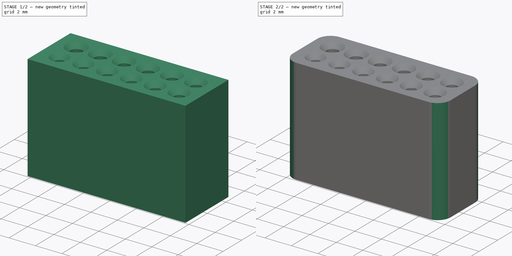
[diagram: build sequence overview — one tinted view per stage of 2, left to right]
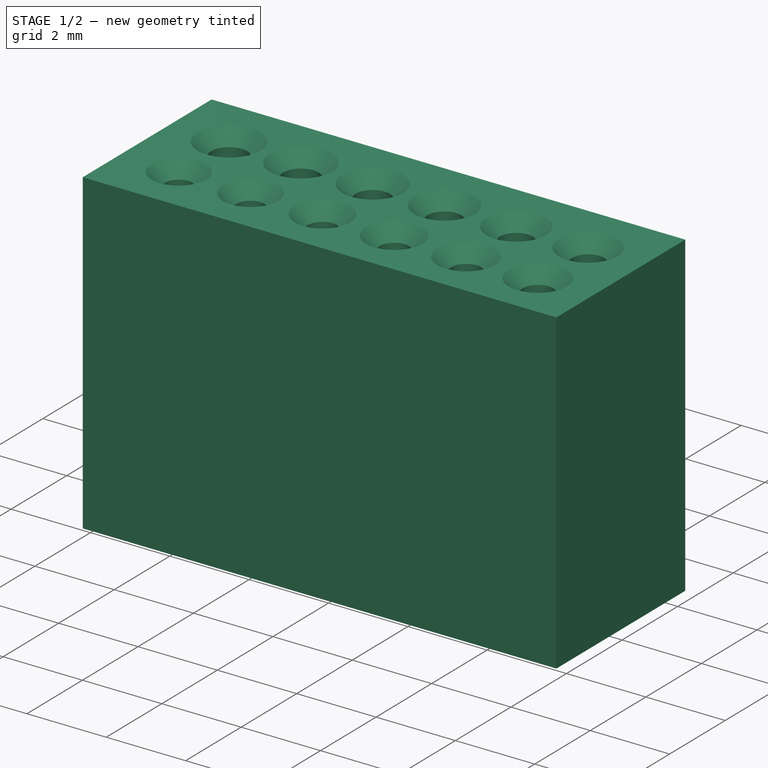
[diagram: stage 1 of 2 — iso view after this stage's code; geometry added in this stage tinted green]
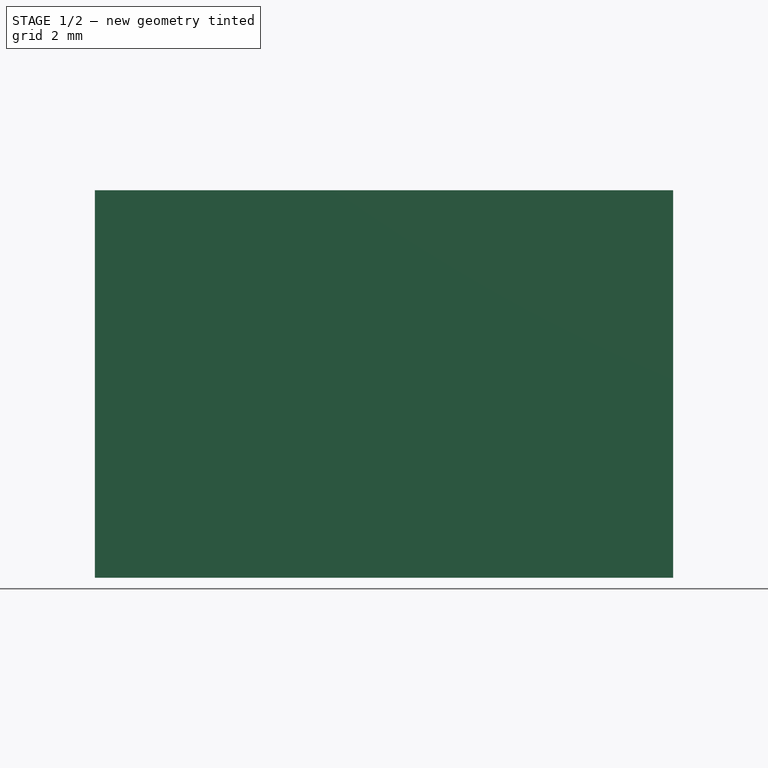
[diagram: stage 1 of 2 — front view after this stage's code; geometry added in this stage tinted green]
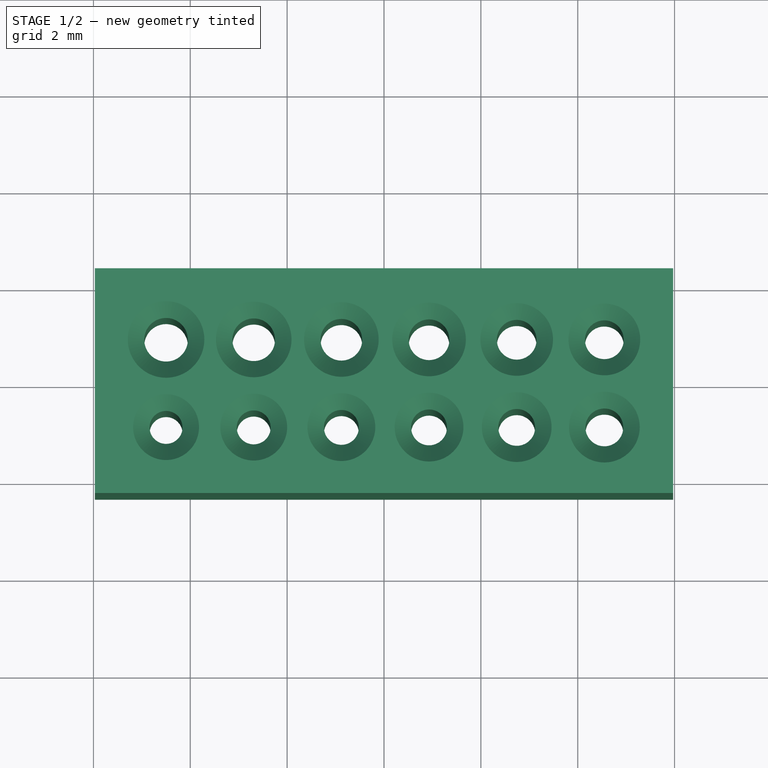
[diagram: stage 1 of 2 — top view after this stage's code; geometry added in this stage tinted green]
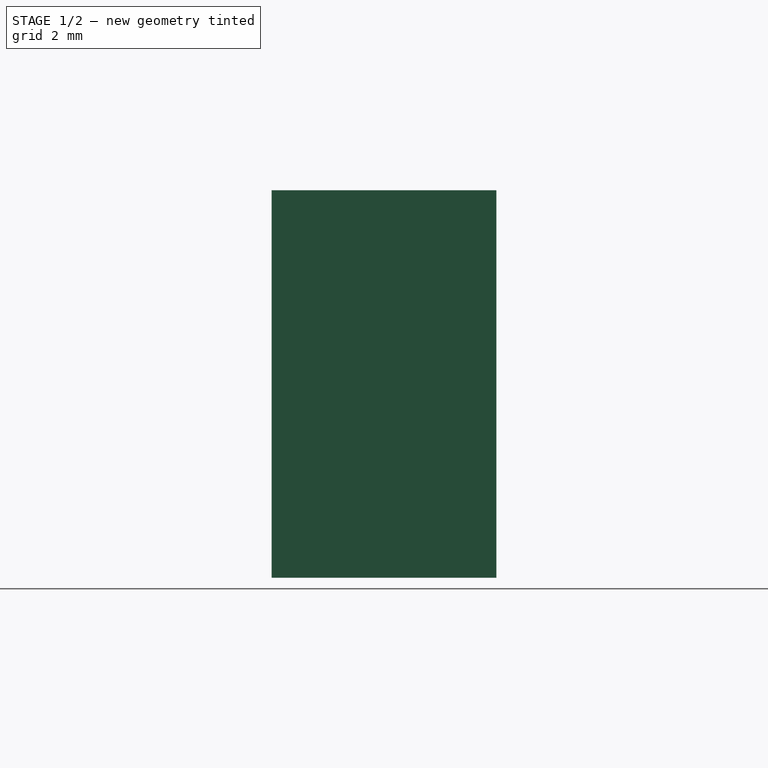
[diagram: stage 1 of 2 — right view after this stage's code; geometry added in this stage tinted green]
FCSTD DOCUMENT  (FreeCAD 0.21R33771 (Git))
Label: PogoPinTest
License: All rights reserved
LicenseURL: http://en.wikipedia.org/wiki/All_rights_reserved
objects: Sketcher::SketchObject×2, PartDesign::Body×2, PartDesign::Pad×1, PartDesign::Chamfer×1, PartDesign::Fillet×1, Spreadsheet::Sheet×1
note: 10 computed .brp shape members not serialized (recipe doc carries the construction recipe); baked Part::Feature solids carry a one-line shape summary decoded from their .brp

FEATURE [Sketcher::SketchObject] Sketch
  FullyConstrained = true
  MapMode = 5
  Support = -> [XY_Plane]
  expr: .Constraints.R = <<Spreadsheet>>.base
  expr: Constraints[54] = <<Spreadsheet>>.base + <<Spreadsheet>>.inc * 11
  expr: Constraints[60] = <<Spreadsheet>>.base + <<Spreadsheet>>.inc * 1
  expr: Constraints[61] = <<Spreadsheet>>.base + <<Spreadsheet>>.inc * 10
  expr: Constraints[62] = <<Spreadsheet>>.base + <<Spreadsheet>>.inc * 2
  expr: Constraints[63] = <<Spreadsheet>>.base + <<Spreadsheet>>.inc * 9
  expr: Constraints[64] = <<Spreadsheet>>.base + <<Spreadsheet>>.inc * 3
  expr: Constraints[65] = <<Spreadsheet>>.base + <<Spreadsheet>>.inc * 8
  expr: Constraints[66] = <<Spreadsheet>>.base + <<Spreadsheet>>.inc * 4
  expr: Constraints[67] = <<Spreadsheet>>.base + <<Spreadsheet>>.inc * 7
  expr: Constraints[68] = <<Spreadsheet>>.base + <<Spreadsheet>>.inc * 5
  expr: Constraints[69] = <<Spreadsheet>>.base + <<Spreadsheet>>.inc * 6
  expr: Constraints[97] = .Constraints.R * 3
  sketch-geometry (40):
    g0: Circle CenterX=-4.5 CenterY=-0.96 CenterZ=0 NormalX=0 NormalY=0 NormalZ=1 AngleXU=0 Radius=0.34
    g1: Circle CenterX=-4.5 CenterY=0.85 CenterZ=0 NormalX=0 NormalY=0 NormalZ=1 AngleXU=0 Radius=0.45
    g2: LineSegment StartX=-5.97 StartY=2.32 StartZ=0 EndX=5.97 EndY=2.32 EndZ=0
    g3: LineSegment StartX=5.97 StartY=2.32 StartZ=0 EndX=5.97 EndY=-2.32 EndZ=0
    g4: LineSegment StartX=5.97 StartY=-2.32 StartZ=0 EndX=-5.97 EndY=-2.32 EndZ=0
    g5: LineSegment StartX=-5.97 StartY=-2.32 StartZ=0 EndX=-5.97 EndY=2.32 EndZ=0
    g6: LineSegment StartX=-4.5 StartY=0.85 StartZ=0 EndX=-2.69 EndY=0.85 EndZ=0
    g7: LineSegment StartX=-4.5 StartY=-0.96 StartZ=0 EndX=-2.69 EndY=-0.96 EndZ=0
    g8: LineSegment StartX=-2.69 StartY=0.85 StartZ=0 EndX=-0.88 EndY=0.85 EndZ=0
    g9: LineSegment StartX=-2.69 StartY=-0.96 StartZ=0 EndX=-0.88 EndY=-0.96 EndZ=0
    g10: LineSegment StartX=-0.88 StartY=-0.96 StartZ=0 EndX=0.93 EndY=-0.96 EndZ=0
    g11: LineSegment StartX=-0.88 StartY=0.85 StartZ=0 EndX=0.93 EndY=0.85 EndZ=0
    g12: LineSegment StartX=0.93 StartY=0.85 StartZ=0 EndX=2.74 EndY=0.85 EndZ=0
    g13: LineSegment StartX=0.93 StartY=-0.96 StartZ=0 EndX=2.74 EndY=-0.96 EndZ=0
    g14: LineSegment StartX=2.74 StartY=0.85 StartZ=0 EndX=4.55 EndY=0.85 EndZ=0
    g15: LineSegment StartX=2.74 StartY=-0.96 StartZ=0 EndX=4.55 EndY=-0.96 EndZ=0
    g16: LineSegment StartX=4.55 StartY=-0.96 StartZ=0 EndX=5.97 EndY=-0.96 EndZ=0
    g17: Circle CenterX=-2.69 CenterY=0.85 CenterZ=0 NormalX=0 NormalY=0 NormalZ=1 AngleXU=0 Radius=0.44
    g18: Circle CenterX=-0.88 CenterY=0.85 CenterZ=0 NormalX=0 NormalY=0 NormalZ=1 AngleXU=0 Radius=0.43
    g19: Circle CenterX=0.93 CenterY=0.85 CenterZ=0 NormalX=0 NormalY=0 NormalZ=1 AngleXU=0 Radius=0.42
    g20: Circle CenterX=2.74 CenterY=0.85 CenterZ=0 NormalX=0 NormalY=0 NormalZ=1 AngleXU=0 Radius=0.41
    g21: Circle CenterX=4.55 CenterY=0.85 CenterZ=0 NormalX=0 NormalY=0 NormalZ=1 AngleXU=0 Radius=0.4
    g22: Circle CenterX=-2.69 CenterY=-0.96 CenterZ=0 NormalX=0 NormalY=0 NormalZ=1 AngleXU=0 Radius=0.35
    g23: Circle CenterX=-0.88 CenterY=-0.96 CenterZ=0 NormalX=0 NormalY=0 NormalZ=1 AngleXU=0 Radius=0.36
    g24: Circle CenterX=0.93 CenterY=-0.96 CenterZ=0 NormalX=0 NormalY=0 NormalZ=1 AngleXU=0 Radius=0.37
    g25: Circle CenterX=2.74 CenterY=-0.96 CenterZ=0 NormalX=0 NormalY=0 NormalZ=1 AngleXU=0 Radius=0.38
    g26: Circle CenterX=4.55 CenterY=-0.96 CenterZ=0 NormalX=0 NormalY=0 NormalZ=1 AngleXU=0 Radius=0.39
    g27: LineSegment StartX=-4.5 StartY=-0.96 StartZ=0 EndX=-5.97 EndY=-0.96 EndZ=0
    g28: LineSegment StartX=-4.5 StartY=0.85 StartZ=0 EndX=-4.5 EndY=1.3 EndZ=0
    g29: LineSegment StartX=-4.5 StartY=1.3 StartZ=0 EndX=-4.5 EndY=2.32 EndZ=0
    g30: LineSegment StartX=-4.5 StartY=0.85 StartZ=0 EndX=-4.5 EndY=0.4 EndZ=0
    g31: LineSegment StartX=-4.5 StartY=0.4 StartZ=0 EndX=-4.5 EndY=-0.62 EndZ=0
    g32: LineSegment StartX=-4.5 StartY=-0.62 StartZ=0 EndX=-4.5 EndY=-0.96 EndZ=0
    g33: LineSegment StartX=-4.5 StartY=-0.96 StartZ=0 EndX=-4.5 EndY=-1.3 EndZ=0
    g34: LineSegment StartX=-4.5 StartY=-1.3 StartZ=0 EndX=-4.5 EndY=-2.32 EndZ=0
    g35: LineSegment StartX=-2.69 StartY=0.85 StartZ=0 EndX=-2.69 EndY=-0.96 EndZ=0
    g36: LineSegment StartX=-4.5 StartY=0.85 StartZ=0 EndX=-4.95 EndY=0.85 EndZ=0
    g37: LineSegment StartX=-4.95 StartY=0.85 StartZ=0 EndX=-5.97 EndY=0.85 EndZ=0
    g38: LineSegment StartX=4.55 StartY=0.85 StartZ=0 EndX=4.95 EndY=0.85 EndZ=0
    g39: LineSegment StartX=4.95 StartY=0.85 StartZ=0 EndX=5.97 EndY=0.85 EndZ=0
  constraints (109):
    c: Radius(g0) = 0.34  'R'
    c: Coincident(g30,g1)
    c: Coincident(g32,g0)
    c: Coincident(g28,g1)
    c: Coincident(g33,g0)
    c: Coincident(g2,g3)
    c: Coincident(g3,g4)
    c: Coincident(g4,g5)
    c: Coincident(g5,g2)
    c: Horizontal(g2)
    c: Horizontal(g4)
    c: Vertical(g3)
    c: Vertical(g5)
    c: Coincident(g36,g1)
    c: PointOnObject(g37,g5)
    c: Coincident(g6,g1)
    c: Horizontal(g6)
    c: Coincident(g7,g0)
    c: Horizontal(g7)
    c: PointOnObject(g29,g2)
    c: PointOnObject(g34,g4)
    c: Coincident(g8,g6)
    c: Horizontal(g8)
    c: Coincident(g9,g7)
    c: Horizontal(g9)
    c: Coincident(g10,g9)
    c: Horizontal(g10)
    c: Coincident(g11,g8)
    c: Horizontal(g11)
    c: Coincident(g12,g11)
    c: Horizontal(g12)
    c: Coincident(g13,g10)
    c: Horizontal(g13)
    c: Coincident(g14,g12)
    c: Horizontal(g14)
    c: Coincident(g15,g13)
    c: Horizontal(g15)
    c: Coincident(g38,g14)
    c: Coincident(g16,g15)
    c: Horizontal(g16)
    c: Equal(g6,g7)
    c: Equal(g7,g8)
    c: Equal(g8,g9)
    c: Equal(g9,g11)
    c: Equal(g11,g10)
    c: Equal(g10,g12)
    c: Equal(g12,g13)
    c: Equal(g13,g14)
    c: Equal(g14,g15)
    c: Coincident(g17,g6)
    c: Coincident(g18,g8)
    c: Coincident(g19,g11)
    c: Coincident(g20,g12)
    c: Coincident(g21,g14)
    c: Radius(g1) = 0.45
    c: Coincident(g22,g7)
    c: Coincident(g23,g9)
    c: Coincident(g24,g10)
    c: Coincident(g25,g13)
    c: Coincident(g26,g15)
    c: Radius(g22) = 0.35
    c: Radius(g17) = 0.44
    c: Radius(g23) = 0.36
    c: Radius(g18) = 0.43
    c: Radius(g24) = 0.37
    c: Radius(g19) = 0.42
    c: Radius(g25) = 0.38
    c: Radius(g20) = 0.41
    c: Radius(g26) = 0.39
    c: Radius(g21) = 0.4
    c: PointOnObject(g16,g3)
    c: PointOnObject(g39,g3)
    c: Coincident(g27,g0)
    c: PointOnObject(g27,g5)
    c: Horizontal(g27)
    c: Coincident(g28,g29)
    c: Vertical(g28)
    c: Vertical(g29)
    c: Coincident(g30,g31)
    c: Vertical(g30)
    c: Coincident(g31,g32)
    c: Vertical(g31)
    c: Vertical(g32)
    c: Coincident(g33,g34)
    c: Vertical(g33)
    c: Vertical(g34)
    c: Coincident(g35,g17)
    c: Coincident(g35,g22)
    c: PointOnObject(g28,g1)
    c: PointOnObject(g30,g1)
    c: PointOnObject(g31,g0)
    c: PointOnObject(g33,g0)
    c: Equal(g29,g31)
    c: Equal(g31,g34)
    c: DistanceY(g4,g2) = 4.64
    c: Symmetric(g4,g2,g-1)
    c: DistanceX(g2,g2) = 11.94
    c: DistanceY(g31,g31) = 1.02
    c: Coincident(g36,g37)
    c: Horizontal(g36)
    c: Horizontal(g37)
    c: PointOnObject(g36,g1)
    c: Equal(g37,g29)
    c: Coincident(g38,g39)
    c: Horizontal(g38)
    c: Horizontal(g39)
    c: PointOnObject(g38,g21)
    c: Equal(g39,g37)
    c: Equal(g35,g6)
FEATURE [PartDesign::Pad] Pad
  Direction = (0,0,1)
  Length = 8
  Length2 = 10
  Profile = -> Sketch
  ReferenceAxis = -> Sketch [N_Axis]
  Type = 0
FEATURE [PartDesign::Chamfer] Chamfer
  Angle = 45
  Base = -> Pad [Face16,Face5,Face6,Face15,Face7,Face14,Face8,Face13,Face9,Face12,Face10,Face11]
  BaseFeature = -> Pad
  ChamferType = 0
  FlipDirection = false
  Size = 0.34
  Size2 = 1
  SupportTransform = false
  UseAllEdges = false
  expr: Size = <<Sketch>>.Constraints.R
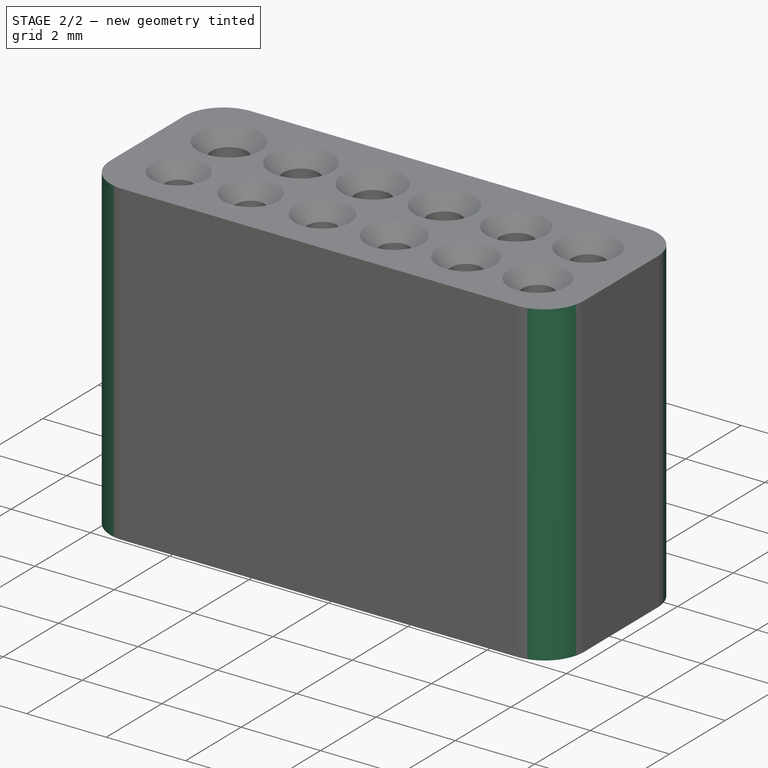
[diagram: stage 2 of 2 — iso view after this stage's code; geometry added in this stage tinted green]
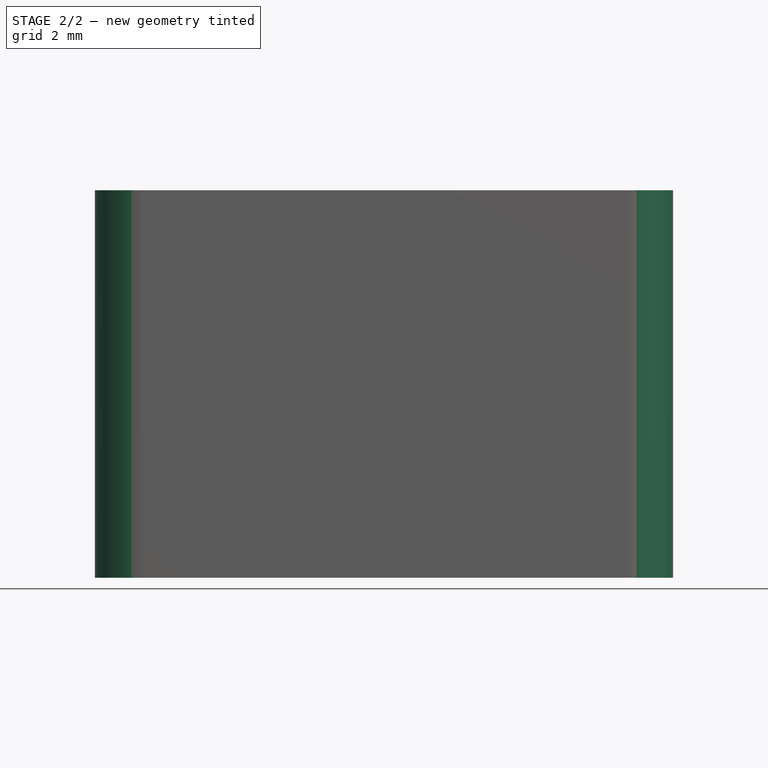
[diagram: stage 2 of 2 — front view after this stage's code; geometry added in this stage tinted green]
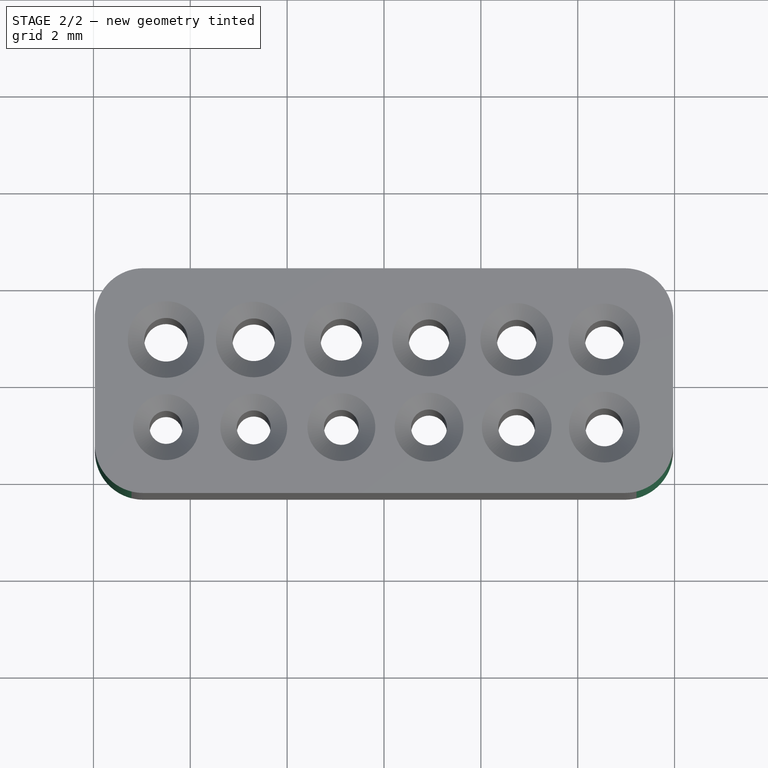
[diagram: stage 2 of 2 — top view after this stage's code; geometry added in this stage tinted green]
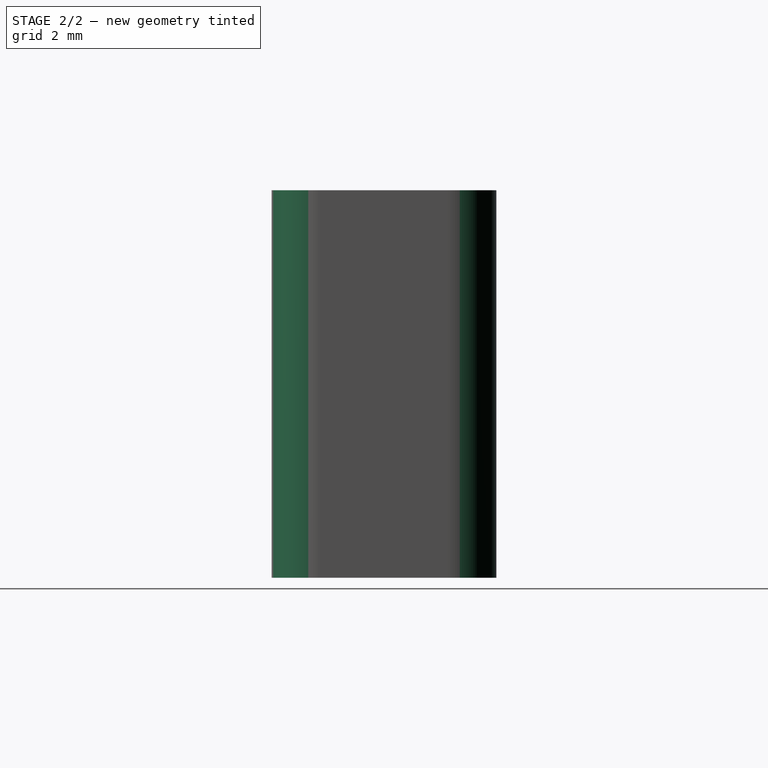
[diagram: stage 2 of 2 — right view after this stage's code; geometry added in this stage tinted green]
FEATURE [PartDesign::Fillet] Fillet
  Base = -> Chamfer [Edge42,Edge41,Edge43,Edge40]
  BaseFeature = -> Chamfer
  Radius = 1
  SupportTransform = false
  UseAllEdges = false
FEATURE [PartDesign::Body] Body
  Group = -> [Sketch,Pad,Chamfer,Fillet]
  Origin = -> Origin
  Tip = -> Fillet
FEATURE [Spreadsheet::Sheet] Spreadsheet
  cells = B2='Base; C2(base)==0.34 mm; B3='Increment; C3(inc)==0.01 mm
FEATURE [Sketcher::SketchObject] Sketch001
  FullyConstrained = false
  MapMode = 5
  Support = -> [XY_Plane001]
  sketch-geometry (12):
    g0: Circle CenterX=-18.7467 CenterY=-4.03451 CenterZ=0 NormalX=0 NormalY=0 NormalZ=1 AngleXU=0 Radius=0.54
    g1: Circle CenterX=-17.1467 CenterY=-4.03451 CenterZ=0 NormalX=0 NormalY=0 NormalZ=1 AngleXU=0 Radius=0.54
    g2: LineSegment StartX=-18.7467 StartY=-4.03451 StartZ=0 EndX=-18.2067 EndY=-4.03451 EndZ=0
    g3: LineSegment StartX=-18.2067 StartY=-4.03451 StartZ=0 EndX=-17.6867 EndY=-4.03451 EndZ=0
    g4: LineSegment StartX=-17.6867 StartY=-4.03451 StartZ=0 EndX=-17.1467 EndY=-4.03451 EndZ=0
    g5: Circle CenterX=-17.9467 CenterY=-2.64887 CenterZ=0 NormalX=0 NormalY=0 NormalZ=1 AngleXU=0 Radius=0.54
    g6: LineSegment StartX=-18.4767 StartY=-3.56686 StartZ=0 EndX=-18.2167 EndY=-3.11652 EndZ=0
    g7: LineSegment StartX=-17.6767 StartY=-3.11652 StartZ=0 EndX=-17.4167 EndY=-3.56686 EndZ=0
    g8: LineSegment StartX=-17.4067 StartY=-2.64887 StartZ=0 EndX=-16.8867 EndY=-2.64887 EndZ=0
    g9: LineSegment StartX=-16.6067 StartY=-4.03451 StartZ=0 EndX=-16.0867 EndY=-4.03451 EndZ=0
    g10: Circle CenterX=-16.3467 CenterY=-2.64887 CenterZ=0 NormalX=0 NormalY=0 NormalZ=1 AngleXU=0 Radius=0.54
    g11: Circle CenterX=-15.5467 CenterY=-4.03451 CenterZ=0 NormalX=0 NormalY=0 NormalZ=1 AngleXU=0 Radius=0.54
  constraints (39):
    c: Coincident(g0,g2)
    c: Radius(g0) = 0.54
    c: Coincident(g1,g4)
    c: Equal(g0,g1)
    c: Coincident(g2,g3)
    c: Horizontal(g2)
    c: Coincident(g3,g4)
    c: Horizontal(g3)
    c: Horizontal(g4)
    c: PointOnObject(g3,g1)
    c: PointOnObject(g2,g0)
    c: Equal(g1,g5)
    c: PointOnObject(g6,g0)
    c: PointOnObject(g6,g5)
    c: PointOnObject(g7,g5)
    c: PointOnObject(g7,g1)
    c: PointOnObject(g5,g7)
    c: PointOnObject(g1,g7)
    c: PointOnObject(g5,g6)
    c: PointOnObject(g0,g6)
    c: Equal(g3,g7)
    c: Equal(g7,g6)
    c: DistanceX(g0,g1) = 1.6
    c: DistanceY(g0,g5) = 1.38564
    c: PointOnObject(g8,g5)
    c: Horizontal(g8)
    c: PointOnObject(g9,g1)
    c: Horizontal(g9)
    c: PointOnObject(g1,g9)
    c: PointOnObject(g5,g8)
    c: Equal(g6,g8)
    c: Equal(g8,g9)
    c: PointOnObject(g8,g10)
    c: PointOnObject(g9,g11)
    c: Equal(g5,g10)
    c: Equal(g10,g11)
    c: PointOnObject(g10,g8)
    c: PointOnObject(g11,g9)
    c: DistanceX(g3,g3) = 0.52
FEATURE [PartDesign::Body] Body001
  Group = -> [Sketch001]
  Origin = -> Origin001
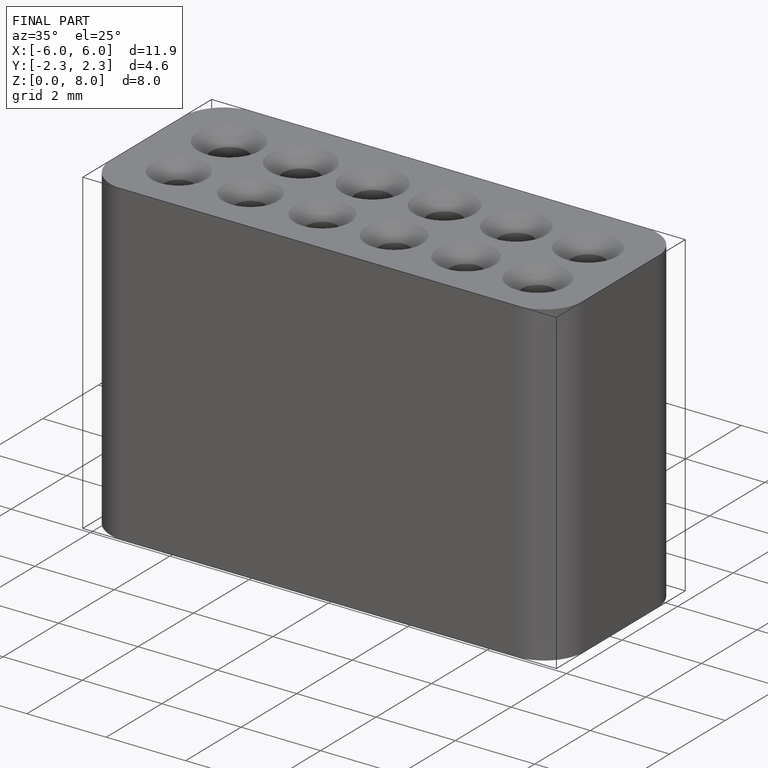
[diagram: finished part — iso view with bounding-box wireframe]
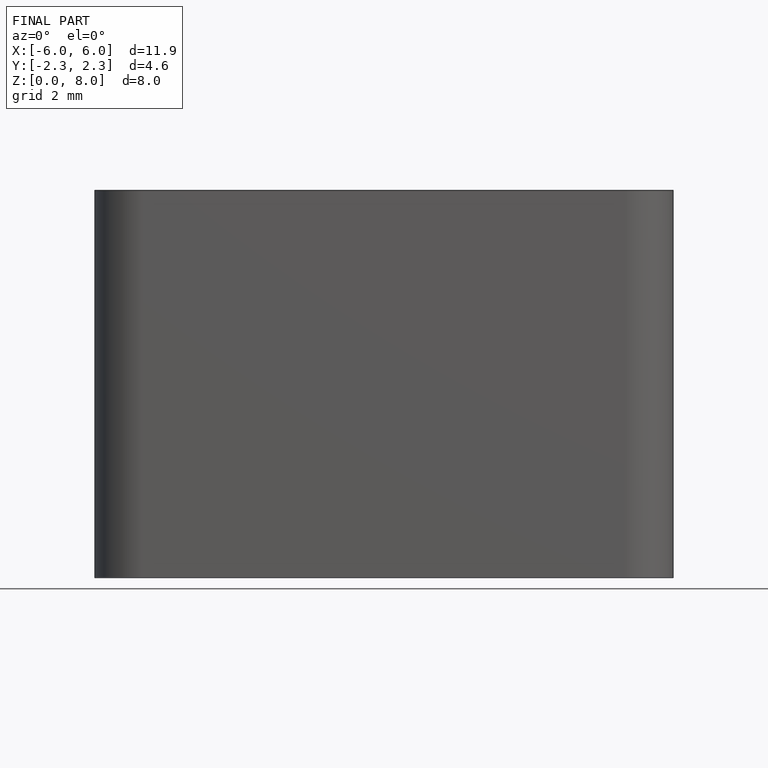
[diagram: finished part — front view with bounding-box wireframe]
